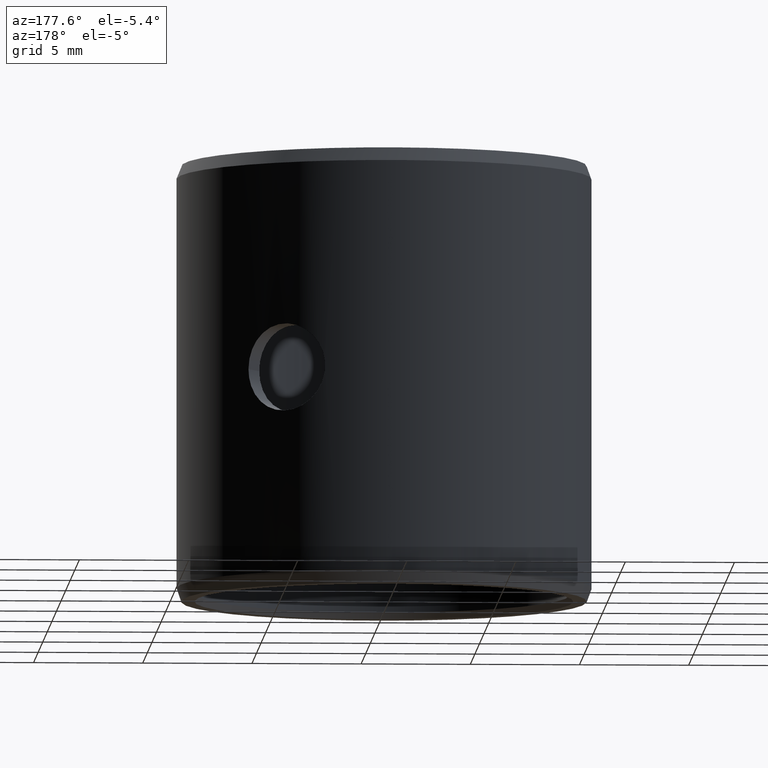
[diagram: clean part render]
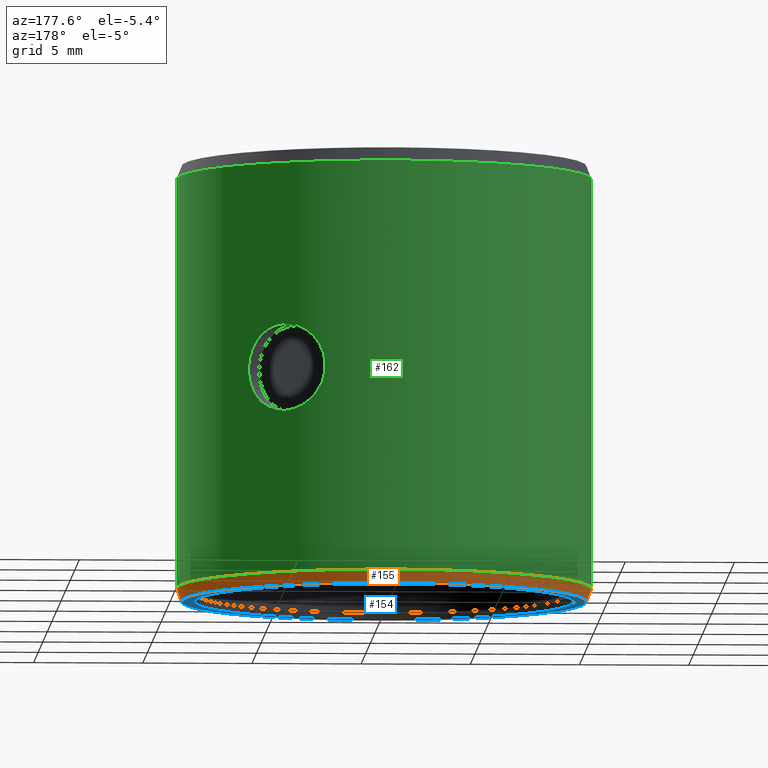
[diagram: same view with three faces highlighted in distinct colors, each labeled with its STEP entity id]
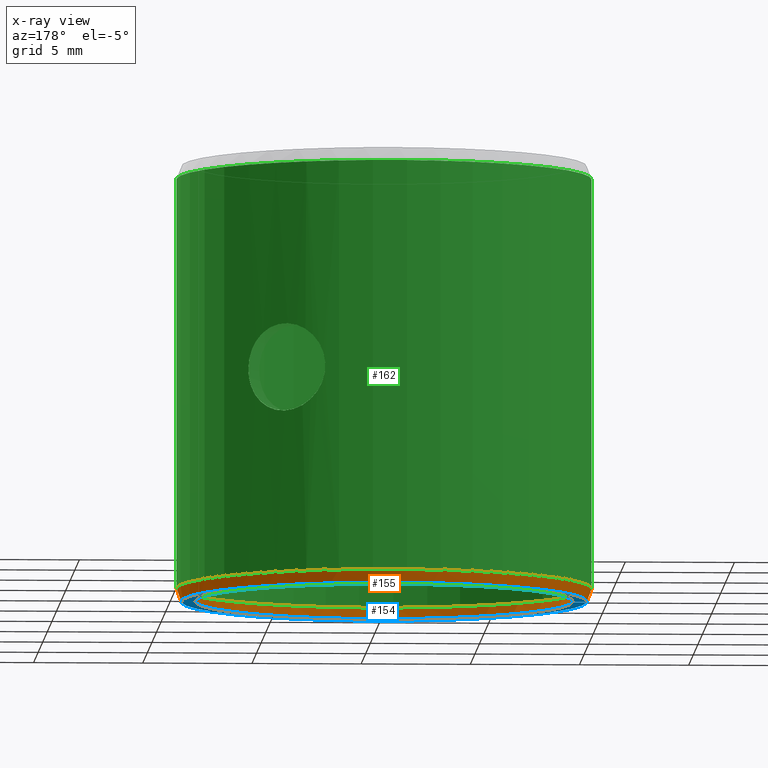
[diagram: x-ray of the same camera — body ghosted, the three highlighted faces saturated]
A machine part, auxiliary view with three faces highlighted in distinct colors.
The next image is the same camera in x-ray (body ghosted, the three faces saturated) — at least one of them is partly hidden behind the body in this view.
Their STEP definitions:

[orange] entity #155 — the highlighted conical surface has half-angle 20 deg.
#155=ADVANCED_FACE('',(#170),#171,.T.);
#170=FACE_OUTER_BOUND('',#196,.T.);
#171=CONICAL_SURFACE('',#197,0.00928161785944028,0.349065850398866);
#196=EDGE_LOOP('',(#231,#232,#233,#234));
#197=AXIS2_PLACEMENT_3D('',#235,#236,#237);
#231=ORIENTED_EDGE('',*,*,#309,.T.);
#232=ORIENTED_EDGE('',*,*,#310,.F.);
#233=ORIENTED_EDGE('',*,*,#306,.F.);
#234=ORIENTED_EDGE('',*,*,#311,.T.);
#235=CARTESIAN_POINT('',(-6.93889390390723E-018,-6.93889390390723E-018,-5.42101086242752E-019));
#236=DIRECTION('',(-6.12323399573677E-017,0.0,1.0));
#237=DIRECTION('',(1.0,0.0,6.12323399573677E-017));
#306=EDGE_CURVE('',#336,#337,#338,.T.);
#309=EDGE_CURVE('',#341,#342,#343,.T.);
#310=EDGE_CURVE('',#337,#342,#344,.T.);
#311=EDGE_CURVE('',#336,#341,#345,.T.);
#336=VERTEX_POINT('',#382);
#337=VERTEX_POINT('',#383);
#338=CIRCLE('',#384,0.00928161785944028);
#341=VERTEX_POINT('',#389);
#342=VERTEX_POINT('',#390);
#343=CIRCLE('',#391,0.0095);
#344=LINE('',#392,#393);
#345=LINE('',#394,#395);
#382=CARTESIAN_POINT('',(0.000161986567278496,0.00928020422408375,-5.32182269686628E-019));
#383=CARTESIAN_POINT('',(-6.93889390390723E-018,0.00928161785944027,-5.42101086242752E-019));
#384=AXIS2_PLACEMENT_3D('',#546,#547,#548);
#389=CARTESIAN_POINT('',(0.000165797861154187,0.00949855310398571,0.0006));
#390=CARTESIAN_POINT('',(-6.93889390390723E-018,0.0095,0.0006));
#391=AXIS2_PLACEMENT_3D('',#551,#552,#553);
#392=CARTESIAN_POINT('',(-6.93889390390723E-018,0.00928161785944027,-5.42101086242752E-019));
#393=VECTOR('',#554,1.0);
#394=CARTESIAN_POINT('',(0.000161986567278496,0.00928020422408375,-5.32182269686628E-019));
#395=VECTOR('',#555,1.0);
#546=CARTESIAN_POINT('',(-6.93889390390723E-018,-6.93889390390723E-018,-5.42101086242752E-019));
#547=DIRECTION('',(6.12323399573677E-017,0.0,-1.0));
#548=DIRECTION('',(-1.0,0.0,-6.12323399573677E-017));
#551=CARTESIAN_POINT('',(-6.93889390390723E-018,-6.93889390390723E-018,0.0006));
#552=DIRECTION('',(6.12323399573677E-017,0.0,-1.0));
#553=DIRECTION('',(-1.0,0.0,-6.12323399573677E-017));
#554=DIRECTION('',(0.0,0.342020143325666,0.939692620785909));
#555=DIRECTION('',(0.0059690745510575,0.341968052001226,0.939692620785909));

[blue] entity #154 — the highlighted planar face has unit normal (-0, 0, -1).
#154=ADVANCED_FACE('',(#168),#169,.T.);
#168=FACE_OUTER_BOUND('',#194,.T.);
#169=PLANE('',#195);
#194=EDGE_LOOP('',(#224,#225,#226,#227));
#195=AXIS2_PLACEMENT_3D('',#228,#229,#230);
#224=ORIENTED_EDGE('',*,*,#306,.T.);
#225=ORIENTED_EDGE('',*,*,#307,.F.);
#226=ORIENTED_EDGE('',*,*,#302,.F.);
#227=ORIENTED_EDGE('',*,*,#308,.T.);
#228=CARTESIAN_POINT('',(0.000151368300183277,0.00867188410961347,-2.88886962217922E-019));
#229=DIRECTION('',(6.12323399573677E-017,0.0,-1.0));
#230=DIRECTION('',(-1.0,0.0,-6.12323399573677E-017));
#302=EDGE_CURVE('',#328,#329,#330,.T.);
#306=EDGE_CURVE('',#336,#337,#338,.T.);
#307=EDGE_CURVE('',#329,#337,#339,.T.);
#308=EDGE_CURVE('',#328,#336,#340,.T.);
#328=VERTEX_POINT('',#372);
#329=VERTEX_POINT('',#373);
#330=CIRCLE('',#374,0.00867320508075689);
#336=VERTEX_POINT('',#382);
#337=VERTEX_POINT('',#383);
#338=CIRCLE('',#384,0.00928161785944028);
#339=LINE('',#385,#386);
#340=LINE('',#387,#388);
#372=CARTESIAN_POINT('',(0.000151368300183277,0.00867188410961347,-4.49414734086836E-020));
#373=CARTESIAN_POINT('',(-6.93889390390723E-018,0.00867320508075688,-5.42101086242752E-020));
#374=AXIS2_PLACEMENT_3D('',#538,#539,#540);
#382=CARTESIAN_POINT('',(0.000161986567278496,0.00928020422408375,-5.32182269686628E-019));
#383=CARTESIAN_POINT('',(-6.93889390390723E-018,0.00928161785944027,-5.42101086242752E-019));
#384=AXIS2_PLACEMENT_3D('',#546,#547,#548);
#385=CARTESIAN_POINT('',(-6.93889390390723E-018,0.00867320508075688,-7.45090761974932E-020));
#386=VECTOR('',#549,1.0);
#387=CARTESIAN_POINT('',(0.000151368300183277,0.00867188410961347,-6.52404409819016E-020));
#388=VECTOR('',#550,1.0);
#538=CARTESIAN_POINT('',(-6.93889390390723E-018,-6.93889390390723E-018,-5.42101086242753E-020));
#539=DIRECTION('',(6.12323399573677E-017,0.0,-1.0));
#540=DIRECTION('',(-1.0,0.0,-6.12323399573677E-017));
#546=CARTESIAN_POINT('',(-6.93889390390723E-018,-6.93889390390723E-018,-5.42101086242752E-019));
#547=DIRECTION('',(6.12323399573677E-017,0.0,-1.0));
#548=DIRECTION('',(-1.0,0.0,-6.12323399573677E-017));
#549=DIRECTION('',(0.0,1.0,-7.68544031992771E-016));
#550=DIRECTION('',(0.0174524064372836,0.999847695156391,-7.67475380308729E-016));

[green] entity #162 — the highlighted cylindrical surface (partial cylindrical patch) has radius 9.5 mm, axis along (-0, 0, -1).
#162=ADVANCED_FACE('',(#185,#186),#187,.T.);
#185=FACE_OUTER_BOUND('',#211,.T.);
#186=FACE_BOUND('',#212,.T.);
#187=CYLINDRICAL_SURFACE('',#213,0.0095);
#211=EDGE_LOOP('',(#289,#290,#291,#292));
#212=EDGE_LOOP('',(#293));
#213=AXIS2_PLACEMENT_3D('',#294,#295,#296);
#289=ORIENTED_EDGE('',*,*,#314,.T.);
#290=ORIENTED_EDGE('',*,*,#323,.F.);
#291=ORIENTED_EDGE('',*,*,#309,.F.);
#292=ORIENTED_EDGE('',*,*,#324,.T.);
#293=ORIENTED_EDGE('',*,*,#327,.T.);
#294=CARTESIAN_POINT('',(-6.93889390390723E-018,-6.93889390390723E-018,0.0));
#295=DIRECTION('',(6.12323399573677E-017,0.0,-1.0));
#296=DIRECTION('',(-1.0,0.0,-6.12323399573677E-017));
#309=EDGE_CURVE('',#341,#342,#343,.T.);
#314=EDGE_CURVE('',#351,#349,#352,.T.);
#323=EDGE_CURVE('',#342,#349,#365,.T.);
#324=EDGE_CURVE('',#341,#351,#366,.T.);
#327=EDGE_CURVE('',#370,#370,#371,.T.);
#341=VERTEX_POINT('',#389);
#342=VERTEX_POINT('',#390);
#343=CIRCLE('',#391,0.0095);
#349=VERTEX_POINT('',#399);
#351=VERTEX_POINT('',#402);
#352=CIRCLE('',#403,0.0095);
#365=LINE('',#422,#423);
#366=LINE('',#424,#425);
#370=VERTEX_POINT('',#483);
#371=B_SPLINE_CURVE_WITH_KNOTS('',3,(#484,#485,#486,#487,#488,#489,#490,#491,#492,#493,#494,#495,#496,#497,#498,#499,#500,#501,#502,#503,#504,#505,#506,#507,#508,#509,#510,#511,#512,#513,#514,#515,#516,#517,#518,#519,#520,#521,#522,#523,#524,#525,#526,#527,#528,#529,#530,#531,#532,#533,#534,#535,#536,#537),.UNSPECIFIED.,.T.,.F.,(2,2,2,2,2,2,2,2,2,2,2,2,2,2,2,2,2,2,2,2,2,2,2,2,2,2,2,2,2),(-0.000391852452461565,0.0,0.000391852452461561,0.000783704904923122,0.00117555735738468,0.00156740980984624,0.00235111471476937,0.00313481961969249,0.00352667207215406,0.00391852452461562,0.00470222942953875,0.00509408188200031,0.00548593433446188,0.00587778678692344,0.00626963923938501,0.00705334414430814,0.00744519659676971,0.00783704904923128,0.00822890150169284,0.00862075395415441,0.00940445885907754,0.00979631131153911,0.0101881637640007,0.0105800162164622,0.0109718686689238,0.0117555735738469,0.0121474260263085,0.0125392784787701,0.0129311309312316),.UNSPECIFIED.);
#389=CARTESIAN_POINT('',(0.000165797861154187,0.00949855310398571,0.0006));
#390=CARTESIAN_POINT('',(-6.93889390390723E-018,0.0095,0.0006));
#391=AXIS2_PLACEMENT_3D('',#551,#552,#553);
#399=CARTESIAN_POINT('',(-8.67361737988404E-018,0.0095,0.0194));
#402=CARTESIAN_POINT('',(0.000165797861154185,0.00949855310398571,0.0194));
#403=AXIS2_PLACEMENT_3D('',#560,#561,#562);
#422=CARTESIAN_POINT('',(-6.93889390390723E-018,0.0095,0.0006));
#423=VECTOR('',#575,1.0);
#424=CARTESIAN_POINT('',(0.000165797861154187,0.00949855310398571,0.0006));
#425=VECTOR('',#576,1.0);
#483=CARTESIAN_POINT('',(0.00693051184011523,-0.0064975384288223,0.01));
#484=CARTESIAN_POINT('',(0.00693051184011523,-0.0064975384288223,0.00986747197383627));
#485=CARTESIAN_POINT('',(0.00693051184011523,-0.0064975384288223,0.0101325280261637));
#486=CARTESIAN_POINT('',(0.00693965947307551,-0.00648781984651581,0.0102627650262338));
#487=CARTESIAN_POINT('',(0.00697517085709909,-0.00644962568505853,0.0105188685243488));
#488=CARTESIAN_POINT('',(0.00700197821050363,-0.00642066396758142,0.0106460868916847));
#489=CARTESIAN_POINT('',(0.00707081923908754,-0.00634477264629044,0.0108880941125723));
#490=CARTESIAN_POINT('',(0.00711256219515783,-0.00629816561039437,0.0110028160734398));
#491=CARTESIAN_POINT('',(0.00720941545968105,-0.00618706390508895,0.0112199313800372));
#492=CARTESIAN_POINT('',(0.00726485477571485,-0.00612213486895014,0.0113224318581958));
#493=CARTESIAN_POINT('',(0.00744255937301844,-0.00590702218063076,0.0115982787885771));
#494=CARTESIAN_POINT('',(0.00758086515715347,-0.00573050618940514,0.0117471747498667));
#495=CARTESIAN_POINT('',(0.0078619931912159,-0.00533828444156256,0.0119469283940262));
#496=CARTESIAN_POINT('',(0.00800766637029049,-0.00511817926001047,0.0119998430631292));
#497=CARTESIAN_POINT('',(0.008209876240228,-0.00478174152678815,0.0120000779314086));
#498=CARTESIAN_POINT('',(0.0082759682963261,-0.00466635428618872,0.0119870042453549));
#499=CARTESIAN_POINT('',(0.00839915934526417,-0.00444079225576789,0.0119358150613746));
#500=CARTESIAN_POINT('',(0.00845682151473784,-0.00432977841549644,0.0118979450016566));
#501=CARTESIAN_POINT('',(0.0086190335495459,-0.00400268731098612,0.0117471641625184));
#502=CARTESIAN_POINT('',(0.00870892223830596,-0.003799996797842,0.0116001746886153));
#503=CARTESIAN_POINT('',(0.00881650348936553,-0.00353950445346843,0.0113215690100936));
#504=CARTESIAN_POINT('',(0.00884715050343477,-0.00346169548016791,0.0112210005464081));
#505=CARTESIAN_POINT('',(0.00889967898097455,-0.00332432273755736,0.0110047761795134));
#506=CARTESIAN_POINT('',(0.00892171497076126,-0.00326429421788798,0.0108876865153448));
#507=CARTESIAN_POINT('',(0.00895633779999028,-0.00316806375770874,0.0106460546887893));
#508=CARTESIAN_POINT('',(0.00896910980419053,-0.00313141533498089,0.0105213976830365));
#509=CARTESIAN_POINT('',(0.00898632254698897,-0.0030816715855616,0.0102642975295393));
#510=CARTESIAN_POINT('',(0.00899064630720199,-0.00306892146882635,0.0101315415657615));
#511=CARTESIAN_POINT('',(0.00899069963692882,-0.00306876523224581,0.00973938610935915));
#512=CARTESIAN_POINT('',(0.00897366723780552,-0.00311987802451007,0.00947549098794162));
#513=CARTESIAN_POINT('',(0.00892203266310983,-0.00326342133413272,0.00911423151552944));
#514=CARTESIAN_POINT('',(0.00890014659047418,-0.00332307804370945,0.00899738504053961));
#515=CARTESIAN_POINT('',(0.00884739323041866,-0.00346108220689064,0.00877976536995678));
#516=CARTESIAN_POINT('',(0.00881675370175772,-0.00353886000098294,0.00867930581921162));
#517=CARTESIAN_POINT('',(0.00874567039071152,-0.00371105448101308,0.00849476961198881));
#518=CARTESIAN_POINT('',(0.00870487016792467,-0.00380619267191541,0.00841046922694812));
#519=CARTESIAN_POINT('',(0.00861530095676472,-0.0040048042050188,0.00826561567215897));
#520=CARTESIAN_POINT('',(0.00856622581177279,-0.00410908837540219,0.00820399885073765));
#521=CARTESIAN_POINT('',(0.00840399817109215,-0.00443645607223503,0.00805246404177137));
#522=CARTESIAN_POINT('',(0.00827974914827835,-0.00466534951541785,0.00800017640969527));
#523=CARTESIAN_POINT('',(0.00807578894929588,-0.00500490418102953,0.00799991246121404));
#524=CARTESIAN_POINT('',(0.00800643990918429,-0.0051150161943353,0.00801277294630271));
#525=CARTESIAN_POINT('',(0.00786534290747539,-0.00532943258100878,0.00806363036566733));
#526=CARTESIAN_POINT('',(0.00779285101451661,-0.0054347179371777,0.00810229936098886));
#527=CARTESIAN_POINT('',(0.00765168295367995,-0.00563173454341531,0.0082024080657786));
#528=CARTESIAN_POINT('',(0.00758258354806712,-0.00572419906898464,0.00826374191573796));
#529=CARTESIAN_POINT('',(0.0074484135013093,-0.00589772537155606,0.0084091221489095));
#530=CARTESIAN_POINT('',(0.0073838307584166,-0.00597810086448106,0.00849297978322334));
#531=CARTESIAN_POINT('',(0.00720618232896779,-0.00619318356752531,0.00876845447673734));
#532=CARTESIAN_POINT('',(0.0071054116465865,-0.00630662707589931,0.0089908415016146));
#533=CARTESIAN_POINT('',(0.00700254629785347,-0.00642004285670251,0.0093516468581984));
#534=CARTESIAN_POINT('',(0.00697558815576132,-0.00644917559635491,0.00947863822709644));
#535=CARTESIAN_POINT('',(0.00693966192000337,-0.00648781846443567,0.00973670707969191));
#536=CARTESIAN_POINT('',(0.00693051184011523,-0.0064975384288223,0.00986747197383627));
#537=CARTESIAN_POINT('',(0.00693051184011523,-0.0064975384288223,0.0101325280261637));
#551=CARTESIAN_POINT('',(-6.93889390390723E-018,-6.93889390390723E-018,0.0006));
#552=DIRECTION('',(6.12323399573677E-017,0.0,-1.0));
#553=DIRECTION('',(-1.0,0.0,-6.12323399573677E-017));
#560=CARTESIAN_POINT('',(-8.67361737988404E-018,-6.93889390390723E-018,0.0194));
#561=DIRECTION('',(6.12323399573677E-017,0.0,-1.0));
#562=DIRECTION('',(-1.0,0.0,-6.12323399573677E-017));
#575=DIRECTION('',(-9.22725253179153E-017,0.0,1.0));
#576=DIRECTION('',(-9.22677977473383E-017,5.41725930800896E-019,1.0));